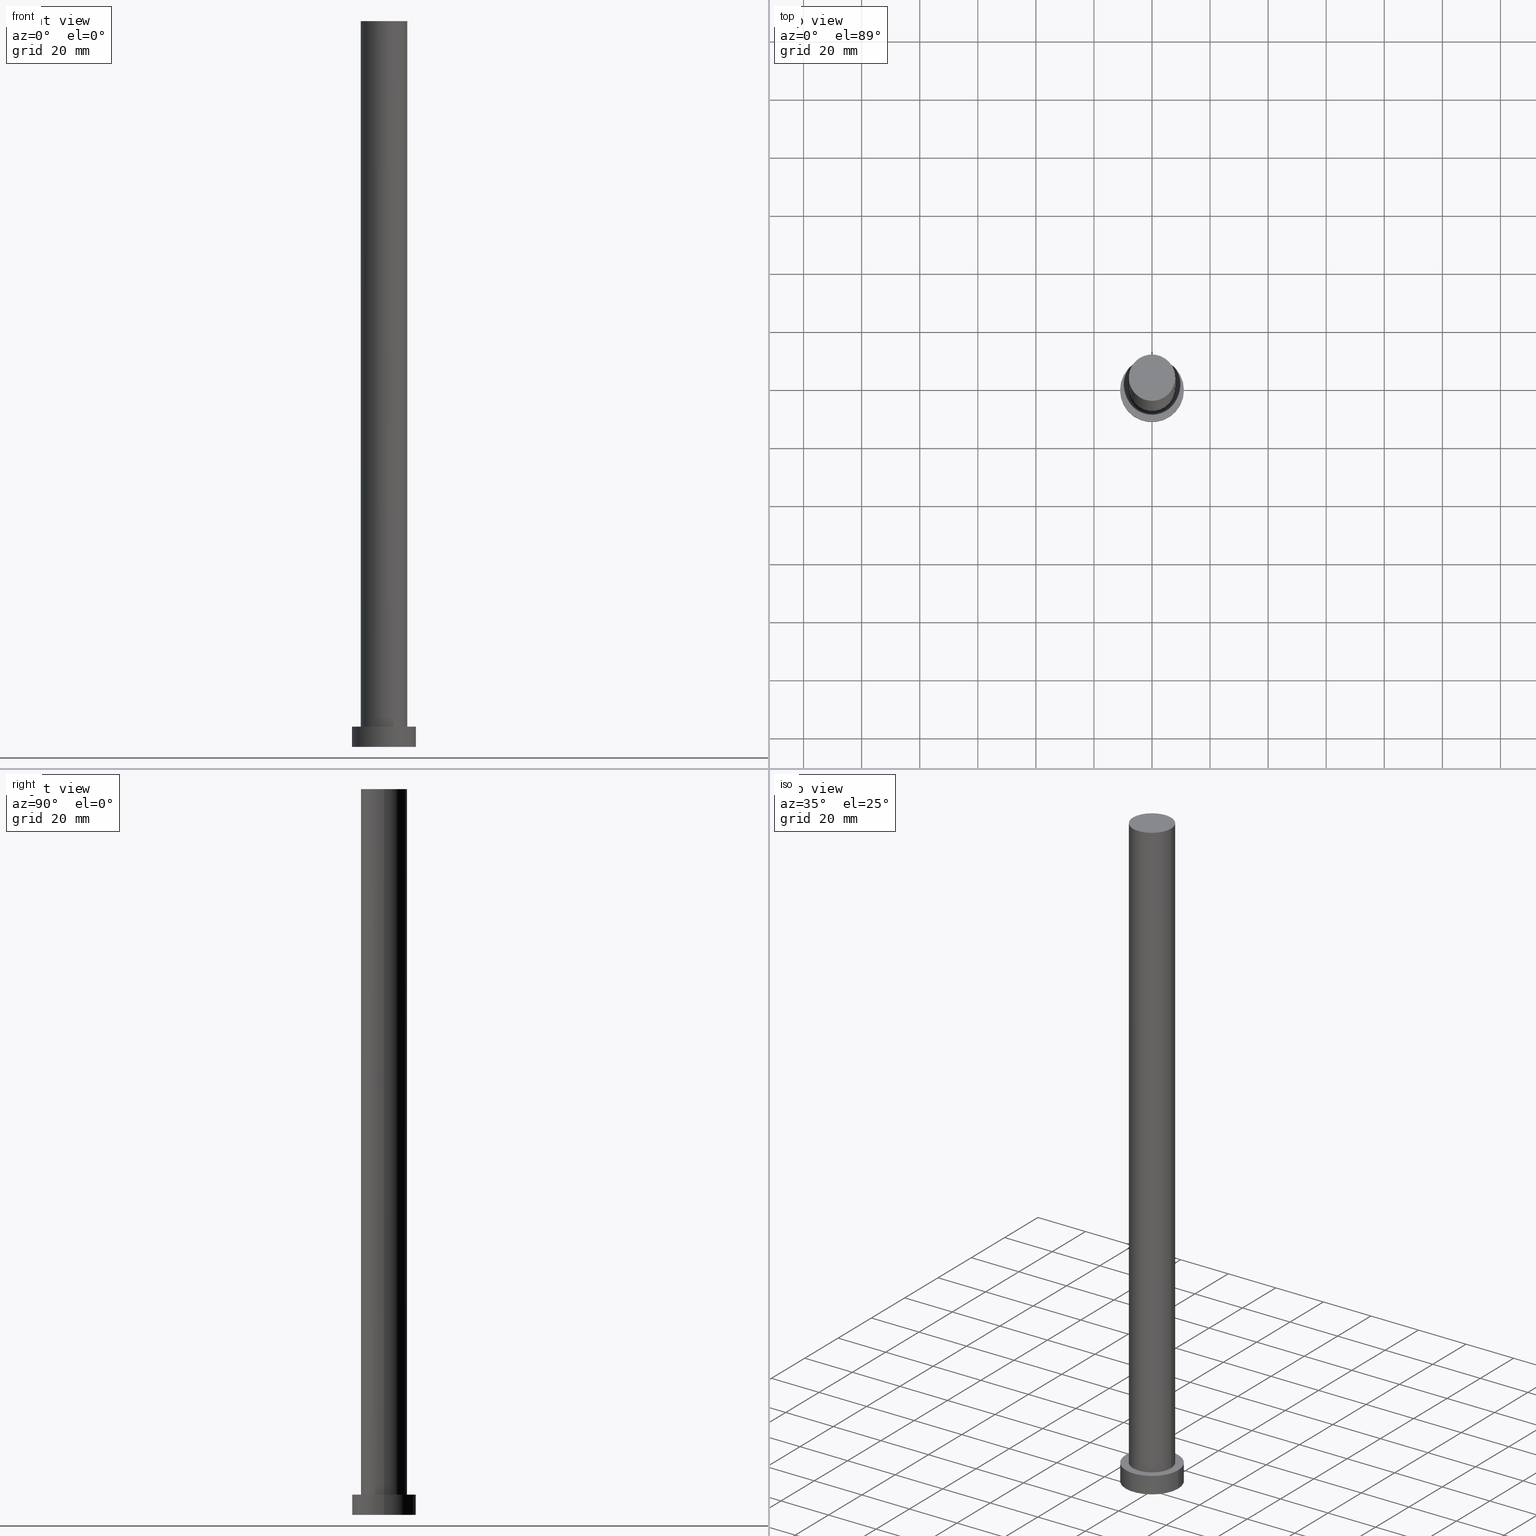
[diagram: canonical four-view strip — front | top / right | iso, engineering-drawing reading convention]
A machine part, canonical four-view strip (front | top / right | iso — engineering-drawing reading convention). The complete STEP part file that produces these views, byte-faithful:
ISO-10303-21;
HEADER;
FILE_DESCRIPTION (( 'STEP AP203' ),
    '1' );
FILE_NAME ('40ca.STEP',
    '2023-02-12T10:39:39',
    ( '' ),
    ( '' ),
    'SwSTEP 2.0',
    'SolidWorks 2019',
    '' );
FILE_SCHEMA (( 'CONFIG_CONTROL_DESIGN' ));
ENDSEC;

DATA;
#1 = DIRECTION ( 'NONE',  ( 1.000000000000000000, 0.000000000000000000, -0.000000000000000000 ) ) ;
#2 = DIRECTION ( 'NONE',  ( -0.000000000000000000, -0.000000000000000000, -1.000000000000000000 ) ) ;
#3 = DIRECTION ( 'NONE',  ( -0.000000000000000000, -0.000000000000000000, -1.000000000000000000 ) ) ;
#4 = CYLINDRICAL_SURFACE ( 'NONE', #45, 8.000000000000000000 ) ;
#5 = AXIS2_PLACEMENT_3D ( 'NONE', #46, #47, #141 ) ;
#6 = CC_DESIGN_PERSON_AND_ORGANIZATION_ASSIGNMENT ( #98, #138, ( #36 ) ) ;
#7 = FACE_OUTER_BOUND ( 'NONE', #111, .T. ) ;
#8 = APPROVAL_ROLE ( '' ) ;
#9 = DIRECTION ( 'NONE',  ( 1.000000000000000000, 0.000000000000000000, 0.000000000000000000 ) ) ;
#10 = DIRECTION ( 'NONE',  ( 0.000000000000000000, 0.000000000000000000, 1.000000000000000000 ) ) ;
#11 = CLOSED_SHELL ( 'NONE', ( #23, #187, #143, #57, #166, #101, #32 ) ) ;
#12 = LOCAL_TIME ( 11, 39, 39.00000000000000000, #229 ) ;
#13 = VERTEX_POINT ( 'NONE', #60 ) ;
#14 = ORIENTED_EDGE ( 'NONE', *, *, #162, .T. ) ;
#15 = ORIENTED_EDGE ( 'NONE', *, *, #41, .T. ) ;
#16 = DIRECTION ( 'NONE',  ( -1.000000000000000000, 0.000000000000000000, 0.000000000000000000 ) ) ;
#17 = MANIFOLD_SOLID_BREP ( 'P�idat vysunut�m3', #11 ) ;
#18 = PRODUCT_DEFINITION_SHAPE ( 'NONE', 'NONE',  #55 ) ;
#19 = ORIENTED_EDGE ( 'NONE', *, *, #66, .T. ) ;
#20 = CARTESIAN_POINT ( 'NONE',  ( 8.000000000000000000, 9.797174393178825657E-16, 250.0000000000000000 ) ) ;
#21 = DESIGN_CONTEXT ( 'detailed design', #156, 'design' ) ;
#22 = DIRECTION ( 'NONE',  ( 1.000000000000000000, 0.000000000000000000, -0.000000000000000000 ) ) ;
#23 = ADVANCED_FACE ( 'NONE', ( #135 ), #216, .T. ) ;
#24 = DIRECTION ( 'NONE',  ( -0.000000000000000000, -0.000000000000000000, -1.000000000000000000 ) ) ;
#25 = LINE ( 'NONE', #42, #188 ) ;
#26 = AXIS2_PLACEMENT_3D ( 'NONE', #51, #191, #146 ) ;
#27 = CC_DESIGN_PERSON_AND_ORGANIZATION_ASSIGNMENT ( #179, #76, ( #36 ) ) ;
#28 = DIRECTION ( 'NONE',  ( -0.000000000000000000, -0.000000000000000000, -1.000000000000000000 ) ) ;
#29 = CARTESIAN_POINT ( 'NONE',  ( 0.000000000000000000, 0.000000000000000000, 250.0000000000000000 ) ) ;
#30 = DATE_AND_TIME ( #114, #112 ) ;
#31 =( NAMED_UNIT ( * ) PLANE_ANGLE_UNIT ( ) SI_UNIT ( $, .RADIAN. ) );
#32 = ADVANCED_FACE ( 'NONE', ( #107 ), #181, .T. ) ;
#33 = DIRECTION ( 'NONE',  ( 1.000000000000000000, 0.000000000000000000, 0.000000000000000000 ) ) ;
#34 = PERSON_AND_ORGANIZATION_ROLE ( 'creator' ) ;
#35 = APPROVAL_DATE_TIME ( #30, #245 ) ;
#36 = PRODUCT_DEFINITION_FORMATION_WITH_SPECIFIED_SOURCE ( 'LIBOVOLN�', '', #151, .NOT_KNOWN. ) ;
#37 = VERTEX_POINT ( 'NONE', #67 ) ;
#38 = APPLICATION_CONTEXT ( 'configuration controlled 3d designs of mechanical parts and assemblies' ) ;
#39 = CIRCLE ( 'NONE', #71, 11.00000000000000000 ) ;
#40 = VERTEX_POINT ( 'NONE', #109 ) ;
#41 = EDGE_CURVE ( 'NONE', #13, #255, #184, .T. ) ;
#42 = CARTESIAN_POINT ( 'NONE',  ( 11.00000000000000000, 1.347111479062088405E-15, 7.000000000000000000 ) ) ;
#43 = COORDINATED_UNIVERSAL_TIME_OFFSET ( 1, 0, .AHEAD. ) ;
#44 = DIRECTION ( 'NONE',  ( 0.000000000000000000, 0.000000000000000000, 1.000000000000000000 ) ) ;
#45 = AXIS2_PLACEMENT_3D ( 'NONE', #161, #241, #182 ) ;
#46 = CARTESIAN_POINT ( 'NONE',  ( 0.000000000000000000, 0.000000000000000000, 7.000000000000000000 ) ) ;
#47 = DIRECTION ( 'NONE',  ( 0.000000000000000000, 0.000000000000000000, 1.000000000000000000 ) ) ;
#48 = CARTESIAN_POINT ( 'NONE',  ( 0.000000000000000000, 0.000000000000000000, 7.000000000000000000 ) ) ;
#49 = CC_DESIGN_SECURITY_CLASSIFICATION ( #159, ( #36 ) ) ;
#50 = ORIENTED_EDGE ( 'NONE', *, *, #117, .F. ) ;
#51 = CARTESIAN_POINT ( 'NONE',  ( 0.000000000000000000, 0.000000000000000000, 0.000000000000000000 ) ) ;
#52 = APPROVAL_STATUS ( 'not_yet_approved' ) ;
#53 = CALENDAR_DATE ( 2023, 12, 2 ) ;
#54 = LINE ( 'NONE', #129, #227 ) ;
#55 = PRODUCT_DEFINITION ( 'NEZN�M�', '', #36, #21 ) ;
#56 = PERSON_AND_ORGANIZATION ( #105, #173 ) ;
#57 = ADVANCED_FACE ( 'NONE', ( #106, #124 ), #127, .T. ) ;
#58 = ORIENTED_EDGE ( 'NONE', *, *, #254, .F. ) ;
#59 = LOCAL_TIME ( 11, 39, 39.00000000000000000, #43 ) ;
#60 = CARTESIAN_POINT ( 'NONE',  ( -11.00000000000000000, 0.000000000000000000, 7.000000000000000000 ) ) ;
#61 = CALENDAR_DATE ( 2023, 12, 2 ) ;
#62 = ORIENTED_EDGE ( 'NONE', *, *, #121, .F. ) ;
#63 = LOCAL_TIME ( 11, 39, 39.00000000000000000, #250 ) ;
#64 = DIRECTION ( 'NONE',  ( 1.000000000000000000, 0.000000000000000000, 0.000000000000000000 ) ) ;
#65 = CARTESIAN_POINT ( 'NONE',  ( -11.00000000000000000, 0.000000000000000000, 7.000000000000000000 ) ) ;
#66 = EDGE_CURVE ( 'NONE', #236, #40, #133, .T. ) ;
#67 = CARTESIAN_POINT ( 'NONE',  ( -8.000000000000000000, 0.000000000000000000, 7.000000000000000000 ) ) ;
#68 = CARTESIAN_POINT ( 'NONE',  ( -8.000000000000000000, 0.000000000000000000, 250.0000000000000000 ) ) ;
#69 = APPLICATION_PROTOCOL_DEFINITION ( 'international standard', 'config_control_design', 1994, #38 ) ;
#70 = AXIS2_PLACEMENT_3D ( 'NONE', #208, #168, #93 ) ;
#71 = AXIS2_PLACEMENT_3D ( 'NONE', #186, #209, #9 ) ;
#72 = ORIENTED_EDGE ( 'NONE', *, *, #235, .T. ) ;
#73 = ORIENTED_EDGE ( 'NONE', *, *, #249, .F. ) ;
#74 = ORIENTED_EDGE ( 'NONE', *, *, #96, .T. ) ;
#75 = EDGE_LOOP ( 'NONE', ( #196, #100, #72, #157 ) ) ;
#76 = PERSON_AND_ORGANIZATION_ROLE ( 'creator' ) ;
#77 = PRODUCT_RELATED_PRODUCT_CATEGORY ( 'detail', '', ( #151 ) ) ;
#78 = PERSON_AND_ORGANIZATION ( #105, #173 ) ;
#79 = DIRECTION ( 'NONE',  ( -1.000000000000000000, 0.000000000000000000, 0.000000000000000000 ) ) ;
#80 = APPROVAL_ROLE ( '' ) ;
#81 = CIRCLE ( 'NONE', #128, 11.00000000000000000 ) ;
#82 = CC_DESIGN_PERSON_AND_ORGANIZATION_ASSIGNMENT ( #131, #91, ( #151 ) ) ;
#83 = CARTESIAN_POINT ( 'NONE',  ( 0.000000000000000000, 0.000000000000000000, 250.0000000000000000 ) ) ;
#84 = CARTESIAN_POINT ( 'NONE',  ( 11.00000000000000000, 1.347111479062088405E-15, 7.000000000000000000 ) ) ;
#85 = CARTESIAN_POINT ( 'NONE',  ( 0.000000000000000000, 0.000000000000000000, 0.000000000000000000 ) ) ;
#86 = CC_DESIGN_PERSON_AND_ORGANIZATION_ASSIGNMENT ( #99, #201, ( #159 ) ) ;
#87 = MECHANICAL_CONTEXT ( 'NONE', #38, 'mechanical' ) ;
#88 = ORIENTED_EDGE ( 'NONE', *, *, #254, .T. ) ;
#89 = DATE_AND_TIME ( #237, #63 ) ;
#90 = CARTESIAN_POINT ( 'NONE',  ( 0.000000000000000000, 0.000000000000000000, 7.000000000000000000 ) ) ;
#91 = PERSON_AND_ORGANIZATION_ROLE ( 'design_owner' ) ;
#92 = CARTESIAN_POINT ( 'NONE',  ( -11.00000000000000000, 0.000000000000000000, 0.000000000000000000 ) ) ;
#93 = DIRECTION ( 'NONE',  ( 1.000000000000000000, 0.000000000000000000, 0.000000000000000000 ) ) ;
#94 = AXIS2_PLACEMENT_3D ( 'NONE', #123, #2, #79 ) ;
#95 = APPROVAL_PERSON_ORGANIZATION ( #78, #126, #80 ) ;
#96 = EDGE_CURVE ( 'NONE', #160, #255, #169, .T. ) ;
#97 = ORIENTED_EDGE ( 'NONE', *, *, #226, .F. ) ;
#98 = PERSON_AND_ORGANIZATION ( #105, #173 ) ;
#99 = PERSON_AND_ORGANIZATION ( #105, #173 ) ;
#100 = ORIENTED_EDGE ( 'NONE', *, *, #66, .F. ) ;
#101 = ADVANCED_FACE ( 'NONE', ( #145 ), #4, .T. ) ;
#102 = AXIS2_PLACEMENT_3D ( 'NONE', #119, #199, #16 ) ;
#103 = CYLINDRICAL_SURFACE ( 'NONE', #149, 11.00000000000000000 ) ;
#104 = APPROVAL_PERSON_ORGANIZATION ( #232, #245, #132 ) ;
#105 = PERSON ( 'NEUR�EN�', 'NEUR�EN�', 'NEUR�EN�', ('NEUR�EN�'), ('NEUR�EN�'), ('NEUR�EN�') ) ;
#106 = FACE_BOUND ( 'NONE', #195, .T. ) ;
#107 = FACE_OUTER_BOUND ( 'NONE', #223, .T. ) ;
#108 = AXIS2_PLACEMENT_3D ( 'NONE', #90, #228, #110 ) ;
#109 = CARTESIAN_POINT ( 'NONE',  ( 8.000000000000000000, 9.797174393178825657E-16, 250.0000000000000000 ) ) ;
#110 = DIRECTION ( 'NONE',  ( 1.000000000000000000, 0.000000000000000000, 0.000000000000000000 ) ) ;
#111 = EDGE_LOOP ( 'NONE', ( #252, #155 ) ) ;
#112 = LOCAL_TIME ( 11, 39, 39.00000000000000000, #214 ) ;
#113 = DATE_TIME_ROLE ( 'creation_date' ) ;
#114 = CALENDAR_DATE ( 2023, 12, 2 ) ;
#115 = APPROVAL_PERSON_ORGANIZATION ( #148, #153, #8 ) ;
#116 = SECURITY_CLASSIFICATION_LEVEL ( 'unclassified' ) ;
#117 = EDGE_CURVE ( 'NONE', #37, #177, #152, .T. ) ;
#118 = VECTOR ( 'NONE', #24, 1000.000000000000000 ) ;
#119 = CARTESIAN_POINT ( 'NONE',  ( 0.000000000000000000, 0.000000000000000000, 250.0000000000000000 ) ) ;
#120 = VERTEX_POINT ( 'NONE', #84 ) ;
#121 = EDGE_CURVE ( 'NONE', #120, #160, #25, .T. ) ;
#122 = CARTESIAN_POINT ( 'NONE',  ( 0.000000000000000000, 0.000000000000000000, 0.000000000000000000 ) ) ;
#123 = CARTESIAN_POINT ( 'NONE',  ( 0.000000000000000000, 0.000000000000000000, 7.000000000000000000 ) ) ;
#124 = FACE_OUTER_BOUND ( 'NONE', #233, .T. ) ;
#125 = FACE_OUTER_BOUND ( 'NONE', #180, .T. ) ;
#126 = APPROVAL ( #197, 'NEUR�EN�' ) ;
#127 = PLANE ( 'NONE',  #198 ) ;
#128 = AXIS2_PLACEMENT_3D ( 'NONE', #122, #10, #170 ) ;
#129 = CARTESIAN_POINT ( 'NONE',  ( -8.000000000000000000, 0.000000000000000000, 250.0000000000000000 ) ) ;
#130 = DIRECTION ( 'NONE',  ( 0.000000000000000000, 0.000000000000000000, 1.000000000000000000 ) ) ;
#131 = PERSON_AND_ORGANIZATION ( #105, #173 ) ;
#132 = APPROVAL_ROLE ( '' ) ;
#133 = CIRCLE ( 'NONE', #230, 8.000000000000000000 ) ;
#134 = EDGE_LOOP ( 'NONE', ( #253, #14, #242, #150 ) ) ;
#135 = FACE_OUTER_BOUND ( 'NONE', #134, .T. ) ;
#136 = SHAPE_DEFINITION_REPRESENTATION ( #18, #178 ) ;
#137 = ORIENTED_EDGE ( 'NONE', *, *, #41, .F. ) ;
#138 = PERSON_AND_ORGANIZATION_ROLE ( 'design_supplier' ) ;
#139 =( GEOMETRIC_REPRESENTATION_CONTEXT ( 3 ) GLOBAL_UNCERTAINTY_ASSIGNED_CONTEXT ( ( #220 ) ) GLOBAL_UNIT_ASSIGNED_CONTEXT ( ( #165, #31, #247 ) ) REPRESENTATION_CONTEXT ( 'NONE', 'WORKASPACE' ) );
#140 = CARTESIAN_POINT ( 'NONE',  ( 0.000000000000000000, 0.000000000000000000, 0.000000000000000000 ) ) ;
#141 = DIRECTION ( 'NONE',  ( 1.000000000000000000, 0.000000000000000000, 0.000000000000000000 ) ) ;
#142 = CARTESIAN_POINT ( 'NONE',  ( 0.000000000000000000, 0.000000000000000000, 7.000000000000000000 ) ) ;
#143 = ADVANCED_FACE ( 'NONE', ( #125 ), #243, .T. ) ;
#144 = CARTESIAN_POINT ( 'NONE',  ( 0.000000000000000000, 0.000000000000000000, 250.0000000000000000 ) ) ;
#145 = FACE_OUTER_BOUND ( 'NONE', #75, .T. ) ;
#146 = DIRECTION ( 'NONE',  ( 1.000000000000000000, 0.000000000000000000, 0.000000000000000000 ) ) ;
#147 = AXIS2_PLACEMENT_3D ( 'NONE', #29, #130, #33 ) ;
#148 = PERSON_AND_ORGANIZATION ( #105, #173 ) ;
#149 = AXIS2_PLACEMENT_3D ( 'NONE', #142, #221, #240 ) ;
#150 = ORIENTED_EDGE ( 'NONE', *, *, #235, .F. ) ;
#151 = PRODUCT ( '40ca', '40ca', '', ( #87 ) ) ;
#152 = CIRCLE ( 'NONE', #5, 8.000000000000000000 ) ;
#153 = APPROVAL ( #52, 'NEUR�EN�' ) ;
#154 = CC_DESIGN_APPROVAL ( #245, ( #36 ) ) ;
#155 = ORIENTED_EDGE ( 'NONE', *, *, #96, .F. ) ;
#156 = APPLICATION_CONTEXT ( 'configuration controlled 3d designs of mechanical parts and assemblies' ) ;
#157 = ORIENTED_EDGE ( 'NONE', *, *, #117, .T. ) ;
#158 = DIRECTION ( 'NONE',  ( 1.000000000000000000, 0.000000000000000000, -0.000000000000000000 ) ) ;
#159 = SECURITY_CLASSIFICATION ( '', '', #116 ) ;
#160 = VERTEX_POINT ( 'NONE', #206 ) ;
#161 = CARTESIAN_POINT ( 'NONE',  ( 0.000000000000000000, 0.000000000000000000, 250.0000000000000000 ) ) ;
#162 = EDGE_CURVE ( 'NONE', #40, #177, #225, .T. ) ;
#163 = DIRECTION ( 'NONE',  ( -0.000000000000000000, -0.000000000000000000, -1.000000000000000000 ) ) ;
#164 = DIRECTION ( 'NONE',  ( 0.000000000000000000, 0.000000000000000000, 1.000000000000000000 ) ) ;
#165 =( LENGTH_UNIT ( ) NAMED_UNIT ( * ) SI_UNIT ( .MILLI., .METRE. ) );
#166 = ADVANCED_FACE ( 'NONE', ( #7 ), #204, .F. ) ;
#167 = ORIENTED_EDGE ( 'NONE', *, *, #189, .T. ) ;
#168 = DIRECTION ( 'NONE',  ( 0.000000000000000000, 0.000000000000000000, 1.000000000000000000 ) ) ;
#169 = CIRCLE ( 'NONE', #202, 11.00000000000000000 ) ;
#170 = DIRECTION ( 'NONE',  ( 1.000000000000000000, 0.000000000000000000, 0.000000000000000000 ) ) ;
#171 = CC_DESIGN_DATE_AND_TIME_ASSIGNMENT ( #234, #200, ( #159 ) ) ;
#172 = APPLICATION_PROTOCOL_DEFINITION ( 'international standard', 'config_control_design', 1994, #156 ) ;
#173 = ORGANIZATION ( 'NEUR�EN�', 'NEUR�EN�', '' ) ;
#174 = APPROVAL_DATE_TIME ( #194, #126 ) ;
#175 = ORIENTED_EDGE ( 'NONE', *, *, #251, .T. ) ;
#176 = CALENDAR_DATE ( 2023, 12, 2 ) ;
#177 = VERTEX_POINT ( 'NONE', #207 ) ;
#178 = ADVANCED_BREP_SHAPE_REPRESENTATION ( '40ca', ( #17, #26 ), #139 ) ;
#179 = PERSON_AND_ORGANIZATION ( #105, #173 ) ;
#180 = EDGE_LOOP ( 'NONE', ( #62, #58, #15, #167 ) ) ;
#181 = PLANE ( 'NONE',  #244 ) ;
#182 = DIRECTION ( 'NONE',  ( -1.000000000000000000, 0.000000000000000000, 0.000000000000000000 ) ) ;
#183 = DIRECTION ( 'NONE',  ( 1.000000000000000000, 0.000000000000000000, 0.000000000000000000 ) ) ;
#184 = LINE ( 'NONE', #65, #213 ) ;
#185 = CIRCLE ( 'NONE', #147, 8.000000000000000000 ) ;
#186 = CARTESIAN_POINT ( 'NONE',  ( 0.000000000000000000, 0.000000000000000000, 7.000000000000000000 ) ) ;
#187 = ADVANCED_FACE ( 'NONE', ( #246 ), #103, .T. ) ;
#188 = VECTOR ( 'NONE', #163, 1000.000000000000000 ) ;
#189 = EDGE_CURVE ( 'NONE', #255, #160, #81, .T. ) ;
#190 = APPROVAL_DATE_TIME ( #89, #153 ) ;
#191 = DIRECTION ( 'NONE',  ( 0.000000000000000000, 0.000000000000000000, 1.000000000000000000 ) ) ;
#192 = APPROVAL_STATUS ( 'not_yet_approved' ) ;
#193 = EDGE_LOOP ( 'NONE', ( #97, #217, #74, #137 ) ) ;
#194 = DATE_AND_TIME ( #61, #212 ) ;
#195 = EDGE_LOOP ( 'NONE', ( #50, #73 ) ) ;
#196 = ORIENTED_EDGE ( 'NONE', *, *, #162, .F. ) ;
#197 = APPROVAL_STATUS ( 'not_yet_approved' ) ;
#198 = AXIS2_PLACEMENT_3D ( 'NONE', #48, #219, #22 ) ;
#199 = DIRECTION ( 'NONE',  ( -0.000000000000000000, -0.000000000000000000, -1.000000000000000000 ) ) ;
#200 = DATE_TIME_ROLE ( 'classification_date' ) ;
#201 = PERSON_AND_ORGANIZATION_ROLE ( 'classification_officer' ) ;
#202 = AXIS2_PLACEMENT_3D ( 'NONE', #140, #44, #183 ) ;
#203 = CC_DESIGN_DATE_AND_TIME_ASSIGNMENT ( #211, #113, ( #55 ) ) ;
#204 = PLANE ( 'NONE',  #238 ) ;
#205 = DIRECTION ( 'NONE',  ( 0.000000000000000000, 0.000000000000000000, 1.000000000000000000 ) ) ;
#206 = CARTESIAN_POINT ( 'NONE',  ( 11.00000000000000000, 1.347111479062088405E-15, 0.000000000000000000 ) ) ;
#207 = CARTESIAN_POINT ( 'NONE',  ( 8.000000000000000000, 9.797174393178825657E-16, 7.000000000000000000 ) ) ;
#208 = CARTESIAN_POINT ( 'NONE',  ( 0.000000000000000000, 0.000000000000000000, 7.000000000000000000 ) ) ;
#209 = DIRECTION ( 'NONE',  ( 0.000000000000000000, 0.000000000000000000, 1.000000000000000000 ) ) ;
#210 = CC_DESIGN_PERSON_AND_ORGANIZATION_ASSIGNMENT ( #56, #34, ( #55 ) ) ;
#211 = DATE_AND_TIME ( #53, #12 ) ;
#212 = LOCAL_TIME ( 11, 39, 39.00000000000000000, #218 ) ;
#213 = VECTOR ( 'NONE', #3, 1000.000000000000000 ) ;
#214 = COORDINATED_UNIVERSAL_TIME_OFFSET ( 1, 0, .AHEAD. ) ;
#215 = CIRCLE ( 'NONE', #108, 8.000000000000000000 ) ;
#216 = CYLINDRICAL_SURFACE ( 'NONE', #102, 8.000000000000000000 ) ;
#217 = ORIENTED_EDGE ( 'NONE', *, *, #121, .T. ) ;
#218 = COORDINATED_UNIVERSAL_TIME_OFFSET ( 1, 0, .AHEAD. ) ;
#219 = DIRECTION ( 'NONE',  ( 0.000000000000000000, 0.000000000000000000, 1.000000000000000000 ) ) ;
#220 = UNCERTAINTY_MEASURE_WITH_UNIT (LENGTH_MEASURE( 1.000000000000000082E-05 ), #165, 'distance_accuracy_value', 'NONE');
#221 = DIRECTION ( 'NONE',  ( -0.000000000000000000, -0.000000000000000000, -1.000000000000000000 ) ) ;
#222 = CC_DESIGN_APPROVAL ( #153, ( #55 ) ) ;
#223 = EDGE_LOOP ( 'NONE', ( #19, #175 ) ) ;
#224 = DIRECTION ( 'NONE',  ( 0.000000000000000000, 0.000000000000000000, 1.000000000000000000 ) ) ;
#225 = LINE ( 'NONE', #20, #118 ) ;
#226 = EDGE_CURVE ( 'NONE', #120, #13, #39, .T. ) ;
#227 = VECTOR ( 'NONE', #28, 1000.000000000000000 ) ;
#228 = DIRECTION ( 'NONE',  ( 0.000000000000000000, 0.000000000000000000, 1.000000000000000000 ) ) ;
#229 = COORDINATED_UNIVERSAL_TIME_OFFSET ( 1, 0, .AHEAD. ) ;
#230 = AXIS2_PLACEMENT_3D ( 'NONE', #83, #224, #64 ) ;
#231 = ORIENTED_EDGE ( 'NONE', *, *, #226, .T. ) ;
#232 = PERSON_AND_ORGANIZATION ( #105, #173 ) ;
#233 = EDGE_LOOP ( 'NONE', ( #88, #231 ) ) ;
#234 = DATE_AND_TIME ( #176, #59 ) ;
#235 = EDGE_CURVE ( 'NONE', #236, #37, #54, .T. ) ;
#236 = VERTEX_POINT ( 'NONE', #68 ) ;
#237 = CALENDAR_DATE ( 2023, 12, 2 ) ;
#238 = AXIS2_PLACEMENT_3D ( 'NONE', #85, #164, #158 ) ;
#239 = CC_DESIGN_APPROVAL ( #126, ( #159 ) ) ;
#240 = DIRECTION ( 'NONE',  ( -1.000000000000000000, 0.000000000000000000, 0.000000000000000000 ) ) ;
#241 = DIRECTION ( 'NONE',  ( -0.000000000000000000, -0.000000000000000000, -1.000000000000000000 ) ) ;
#242 = ORIENTED_EDGE ( 'NONE', *, *, #249, .T. ) ;
#243 = CYLINDRICAL_SURFACE ( 'NONE', #94, 11.00000000000000000 ) ;
#244 = AXIS2_PLACEMENT_3D ( 'NONE', #144, #205, #1 ) ;
#245 = APPROVAL ( #192, 'NEUR�EN�' ) ;
#246 = FACE_OUTER_BOUND ( 'NONE', #193, .T. ) ;
#247 =( NAMED_UNIT ( * ) SI_UNIT ( $, .STERADIAN. ) SOLID_ANGLE_UNIT ( ) );
#248 = CIRCLE ( 'NONE', #70, 11.00000000000000000 ) ;
#249 = EDGE_CURVE ( 'NONE', #177, #37, #215, .T. ) ;
#250 = COORDINATED_UNIVERSAL_TIME_OFFSET ( 1, 0, .AHEAD. ) ;
#251 = EDGE_CURVE ( 'NONE', #40, #236, #185, .T. ) ;
#252 = ORIENTED_EDGE ( 'NONE', *, *, #189, .F. ) ;
#253 = ORIENTED_EDGE ( 'NONE', *, *, #251, .F. ) ;
#254 = EDGE_CURVE ( 'NONE', #13, #120, #248, .T. ) ;
#255 = VERTEX_POINT ( 'NONE', #92 ) ;
ENDSEC;
END-ISO-10303-21;
